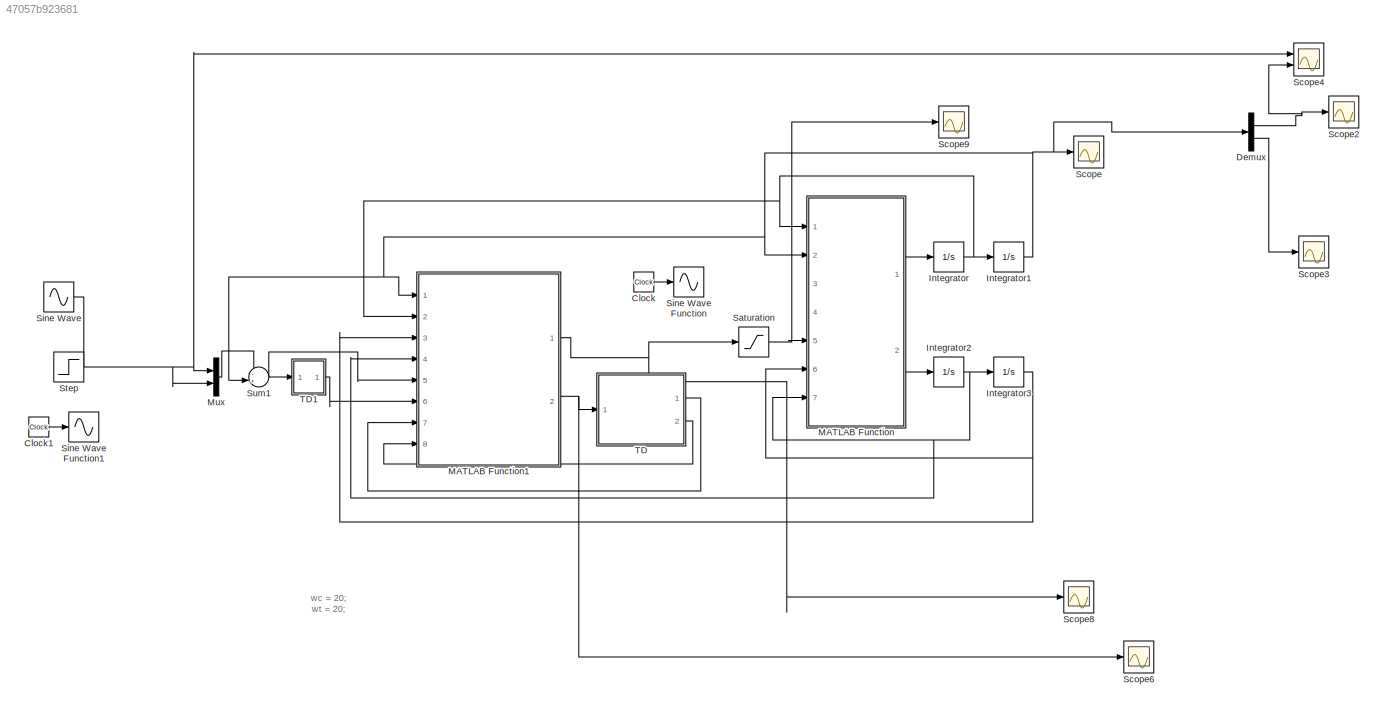
MODEL slx_47057b923681
KIND model
CONFIG AbsTol = auto
CONFIG EnableMultiTasking = off
CONFIG FixedStep = 0.001
CONFIG MaxStep = auto
CONFIG MinStep = auto
CONFIG RelTol = 1e-3
CONFIG SampleTimeConstraint = Unconstrained
CONFIG Solver = FixedStepAuto
CONFIG SolverName = FixedStepAuto
CONFIG StartTime = 0.0
CONFIG StopTime = 100
BLOCK [Clock] Clock
BLOCK [Clock] Clock1
BLOCK [Demux] Demux
  DisplayOption = bar
  Outputs = 2
  Ports = [1, 2]
BLOCK [Integrator] Integrator
  Ports = [1, 1]
BLOCK [Integrator] Integrator1
  Ports = [1, 1]
BLOCK [Integrator] Integrator2
  Ports = [1, 1]
BLOCK [Integrator] Integrator3
  Ports = [1, 1]
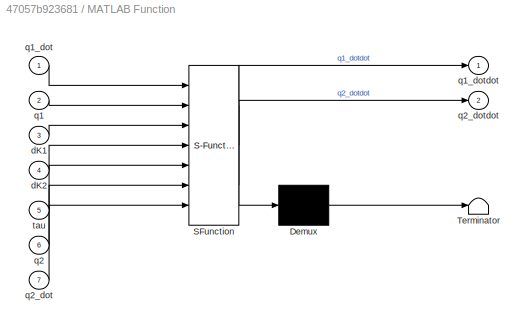
BLOCK [SubSystem] MATLAB Function
  ErrorFcn = Stateflow.Translate.translate
  PermitHierarchicalResolution = ExplicitOnly
  Ports = [7, 2]
  RequestExecContextInheritance = off
  SFBlockType = MATLAB Function
  TreatAsAtomicUnit = on
BLOCK [Demux] MATLAB Function/ Demux 
  Outputs = 1
  Ports = [1, 1]
BLOCK [S-Function] MATLAB Function/ SFunction 
  EnableBusSupport = on
  FunctionName = sf_sfun
  PortCounts = [7 3]
  Ports = [7, 3]
  SFcnIsStateOwnerBlock = off
  SFunctionDeploymentMode = off
  Tag = Stateflow S-Function FMC_robustControl_2017a 2
BLOCK [Terminator] MATLAB Function/ Terminator 
BLOCK [Inport] MATLAB Function/dK1
  IconDisplay = Port number
  Port = 3
BLOCK [Inport] MATLAB Function/dK2
  IconDisplay = Port number
  Port = 4
BLOCK [Inport] MATLAB Function/q1
  IconDisplay = Port number
  Port = 2
BLOCK [Inport] MATLAB Function/q1_dot
  IconDisplay = Port number
BLOCK [Outport] MATLAB Function/q1_dotdot
  IconDisplay = Port number
BLOCK [Inport] MATLAB Function/q2
  IconDisplay = Port number
  Port = 6
BLOCK [Inport] MATLAB Function/q2_dot
  IconDisplay = Port number
  Port = 7
BLOCK [Outport] MATLAB Function/q2_dotdot
  IconDisplay = Port number
  Port = 2
BLOCK [Inport] MATLAB Function/tau
  IconDisplay = Port number
  Port = 5
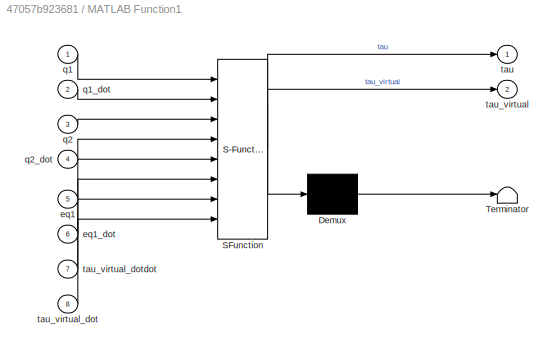
BLOCK [SubSystem] MATLAB Function1
  ErrorFcn = Stateflow.Translate.translate
  PermitHierarchicalResolution = ExplicitOnly
  Ports = [8, 2]
  RequestExecContextInheritance = off
  SFBlockType = MATLAB Function
  TreatAsAtomicUnit = on
BLOCK [Demux] MATLAB Function1/ Demux 
  Outputs = 1
  Ports = [1, 1]
BLOCK [S-Function] MATLAB Function1/ SFunction 
  EnableBusSupport = on
  FunctionName = sf_sfun
  PortCounts = [8 3]
  Ports = [8, 3]
  SFcnIsStateOwnerBlock = off
  SFunctionDeploymentMode = off
  Tag = Stateflow S-Function FMC_robustControl_2017a 1
BLOCK [Terminator] MATLAB Function1/ Terminator 
BLOCK [Inport] MATLAB Function1/eq1
  IconDisplay = Port number
  Port = 5
BLOCK [Inport] MATLAB Function1/eq1_dot
  IconDisplay = Port number
  Port = 6
BLOCK [Inport] MATLAB Function1/q1
  IconDisplay = Port number
BLOCK [Inport] MATLAB Function1/q1_dot
  IconDisplay = Port number
  Port = 2
BLOCK [Inport] MATLAB Function1/q2
  IconDisplay = Port number
  Port = 3
BLOCK [Inport] MATLAB Function1/q2_dot
  IconDisplay = Port number
  Port = 4
BLOCK [Outport] MATLAB Function1/tau
  IconDisplay = Port number
BLOCK [Outport] MATLAB Function1/tau_virtual
  IconDisplay = Port number
  Port = 2
BLOCK [Inport] MATLAB Function1/tau_virtual_dot
  IconDisplay = Port number
  Port = 8
BLOCK [Inport] MATLAB Function1/tau_virtual_dotdot
  IconDisplay = Port number
  Port = 7
BLOCK [Mux] Mux
  DisplayOption = bar
  Inputs = 2
  Ports = [2, 1]
BLOCK [Saturate] Saturation
  InputPortMap = u0
  LowerLimit = -[1000;1000]
  Ports = [1, 1]
  UpperLimit = [1000;1000]
BLOCK [Scope] Scope
  Floating = off
  NumInputPorts = 1
  Ports = [1]
  ScopeSpecificationString = Simulink.scopes.TimeScopeBlockCfg('CurrentConfiguration', extmgr.ConfigurationSet(extmgr.Configuration('Core','General UI',true),extmgr.Configuration('Core','Source UI',true),extmgr.Configuration('Sources','WiredSimulink',true),extmgr.Configuration('Visuals','Time Domain',true,'SerializedDisplays',{struct('MinYLimReal','-0.12831','MaxYLimReal','0.1286','YLabelReal','','MinYLimMag','0.00000','MaxYL...<+1397ch>
BLOCK [Scope] Scope2
  Floating = off
  NumInputPorts = 1
  Ports = [1]
  ScopeSpecificationString = Simulink.scopes.TimeScopeBlockCfg('CurrentConfiguration', extmgr.ConfigurationSet(extmgr.Configuration('Core','General UI',true),extmgr.Configuration('Core','Source UI',true),extmgr.Configuration('Sources','WiredSimulink',true,'DataLoggingVariableName','ScopeData1'),extmgr.Configuration('Visuals','Time Domain',true,'SerializedDisplays',{struct('MinYLimReal','-0.12746','MaxYLimReal','0.12801','YLab...<+1418ch>
BLOCK [Scope] Scope3
  Floating = off
  NumInputPorts = 1
  Ports = [1]
  ScopeSpecificationString = Simulink.scopes.TimeScopeBlockCfg('CurrentConfiguration', extmgr.ConfigurationSet(extmgr.Configuration('Core','General UI',true),extmgr.Configuration('Core','Source UI',true),extmgr.Configuration('Sources','WiredSimulink',true,'DataLoggingVariableName','ScopeData2'),extmgr.Configuration('Visuals','Time Domain',true,'SerializedDisplays',{struct('MinYLimReal','-0.12831','MaxYLimReal','0.1286','YLabe...<+1440ch>
BLOCK [Scope] Scope4
  Floating = off
  NumInputPorts = 2
  Ports = [2]
  ScopeSpecificationString = Simulink.scopes.TimeScopeBlockCfg('CurrentConfiguration', extmgr.ConfigurationSet(extmgr.Configuration('Core','General UI',true),extmgr.Configuration('Core','Source UI',true),extmgr.Configuration('Sources','WiredSimulink',true,'DataLoggingVariableName','ScopeData1'),extmgr.Configuration('Visuals','Time Domain',true,'SerializedDisplays',{struct('MinYLimReal','-0.12746','MaxYLimReal','0.12801','YLab...<+1430ch>
BLOCK [Scope] Scope6
  Floating = off
  NumInputPorts = 1
  Ports = [1]
  ScopeSpecificationString = Simulink.scopes.TimeScopeBlockCfg('CurrentConfiguration', extmgr.ConfigurationSet(extmgr.Configuration('Core','General UI',true),extmgr.Configuration('Core','Source UI',true),extmgr.Configuration('Sources','WiredSimulink',true,'DataLoggingVariableName','ScopeData2'),extmgr.Configuration('Visuals','Time Domain',true,'SerializedDisplays',{struct('MinYLimReal','-9245081.45842','MaxYLimReal','9257044....<+1520ch>
BLOCK [Scope] Scope8
  Floating = off
  NumInputPorts = 1
  Ports = [1]
  ScopeSpecificationString = Simulink.scopes.TimeScopeBlockCfg('CurrentConfiguration', extmgr.ConfigurationSet(extmgr.Configuration('Core','General UI',true),extmgr.Configuration('Core','Source UI',true),extmgr.Configuration('Sources','WiredSimulink',true,'DataLoggingVariableName','ScopeData4'),extmgr.Configuration('Visuals','Time Domain',true,'SerializedDisplays',{struct('MinYLimReal','-47355909708777248.00000','MaxYLimReal'...<+1584ch>
BLOCK [Scope] Scope9
  Floating = off
  NumInputPorts = 1
  Ports = [1]
  ScopeSpecificationString = Simulink.scopes.TimeScopeBlockCfg('CurrentConfiguration', extmgr.ConfigurationSet(extmgr.Configuration('Core','General UI',true),extmgr.Configuration('Core','Source UI',true),extmgr.Configuration('Sources','WiredSimulink',true,'DataLoggingVariableName','ScopeData5'),extmgr.Configuration('Visuals','Time Domain',true,'SerializedDisplays',{struct('MinYLimReal','-1250.00000','MaxYLimReal','1250.00000'...<+1460ch>
BLOCK [Sin] Sine Wave
  Amplitude = 0.1
  Frequency = 0.5
  Ports = [0, 1]
  SampleTime = 0
BLOCK [Sin] Sine Wave Function
  Amplitude = 0.4
  Frequency = 20
  Ports = [1, 1]
  SampleTime = 0
  TimeSource = Use external signal
BLOCK [Sin] Sine Wave Function1
  Amplitude = 0.4
  Frequency = 20
  Ports = [1, 1]
  SampleTime = 0
  TimeSource = Use external signal
BLOCK [Step] Step
  After = 0.1
  SampleTime = 0
  Time = 0
BLOCK [Sum] Sum1
  IconShape = round
  InputSameDT = off
  Inputs = -+|
  OutDataTypeStr = Inherit: Inherit via internal rule
  Ports = [2, 1]
  SaturateOnIntegerOverflow = off
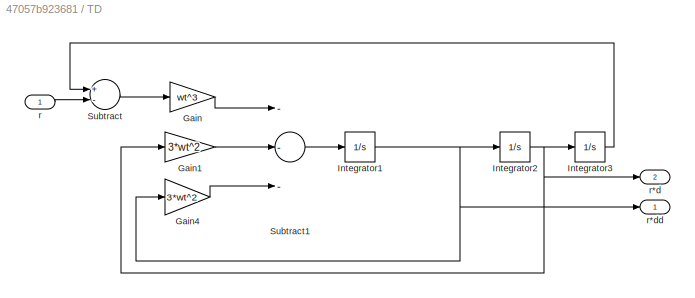
BLOCK [SubSystem] TD
  Ports = [1, 2]
  RequestExecContextInheritance = off
BLOCK [Gain] TD/Gain
  Gain = wt^3
  OutDataTypeStr = Inherit: Inherit via internal rule
  ParamDataTypeStr = Inherit: Inherit via internal rule
  SaturateOnIntegerOverflow = off
BLOCK [Gain] TD/Gain1
  Gain = 3*wt^2
  OutDataTypeStr = Inherit: Inherit via internal rule
  ParamDataTypeStr = Inherit: Inherit via internal rule
  SaturateOnIntegerOverflow = off
BLOCK [Gain] TD/Gain4
  Gain = 3*wt^2
  OutDataTypeStr = Inherit: Inherit via internal rule
  ParamDataTypeStr = Inherit: Inherit via internal rule
  SaturateOnIntegerOverflow = off
BLOCK [Integrator] TD/Integrator1
  Ports = [1, 1]
BLOCK [Integrator] TD/Integrator2
  Ports = [1, 1]
BLOCK [Integrator] TD/Integrator3
  Ports = [1, 1]
BLOCK [Sum] TD/Subtract
  InputSameDT = off
  Inputs = +-
  OutDataTypeStr = Inherit: Inherit via internal rule
  Ports = [2, 1]
  SaturateOnIntegerOverflow = off
BLOCK [Sum] TD/Subtract1
  InputSameDT = off
  Inputs = ---
  OutDataTypeStr = Inherit: Inherit via internal rule
  Ports = [3, 1]
  SaturateOnIntegerOverflow = off
BLOCK [Inport] TD/r
  IconDisplay = Port number
BLOCK [Outport] TD/r*d
  IconDisplay = Port number
  Port = 2
BLOCK [Outport] TD/r*dd
  IconDisplay = Port number
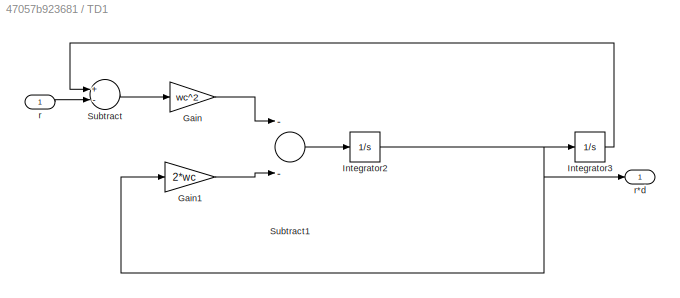
BLOCK [SubSystem] TD1
  Ports = [1, 1]
  RequestExecContextInheritance = off
BLOCK [Gain] TD1/Gain
  Gain = wc^2
  OutDataTypeStr = Inherit: Inherit via internal rule
  ParamDataTypeStr = Inherit: Inherit via internal rule
  SaturateOnIntegerOverflow = off
BLOCK [Gain] TD1/Gain1
  Gain = 2*wc
  OutDataTypeStr = Inherit: Inherit via internal rule
  ParamDataTypeStr = Inherit: Inherit via internal rule
  SaturateOnIntegerOverflow = off
BLOCK [Integrator] TD1/Integrator2
  Ports = [1, 1]
BLOCK [Integrator] TD1/Integrator3
  Ports = [1, 1]
BLOCK [Sum] TD1/Subtract
  InputSameDT = off
  Inputs = +-
  OutDataTypeStr = Inherit: Inherit via internal rule
  Ports = [2, 1]
  SaturateOnIntegerOverflow = off
BLOCK [Sum] TD1/Subtract1
  InputSameDT = off
  Inputs = --
  OutDataTypeStr = Inherit: Inherit via internal rule
  Ports = [2, 1]
  SaturateOnIntegerOverflow = off
BLOCK [Inport] TD1/r
  IconDisplay = Port number
BLOCK [Outport] TD1/r*d
  IconDisplay = Port number
ANNOTATION (root): wc = 20; wt = 20;
LINE Clock1:1 -> Sine Wave Function1:1
LINE Clock:1 -> Sine Wave Function:1
NET Demux:1 -> Scope2:1, Scope4:2
LINE Demux:2 -> Scope3:1
NET Integrator1:1 -> Demux:1, MATLAB Function1:1, MATLAB Function:2, Scope:1, Sum1:2
NET Integrator2:1 -> Integrator3:1, MATLAB Function1:4, MATLAB Function:7
NET Integrator3:1 -> MATLAB Function1:3, MATLAB Function:6
NET Integrator:1 -> Integrator1:1, MATLAB Function1:2, MATLAB Function:1
NET MATLAB Function1:1 -> Saturation:1, Scope8:1
NET MATLAB Function1:2 -> Scope6:1, TD:1
LINE MATLAB Function:1 -> Integrator:1
LINE MATLAB Function:2 -> Integrator2:1
LINE Mux:1 -> Sum1:1
NET Saturation:1 -> MATLAB Function:5, Scope9:1
NET Sine Wave:1 -> Mux:1, Mux:2, Scope4:1
NET Sum1:1 -> MATLAB Function1:5, TD1:1
LINE TD/Gain1:1 -> TD/Subtract1:2
LINE TD/Gain4:1 -> TD/Subtract1:3
LINE TD/Gain:1 -> TD/Subtract1:1
NET TD/Integrator1:1 -> TD/Gain4:1, TD/Integrator2:1, TD/r*dd:1
NET TD/Integrator2:1 -> TD/Gain1:1, TD/Integrator3:1, TD/r*d:1
LINE TD/Integrator3:1 -> TD/Subtract:1
LINE TD/Subtract1:1 -> TD/Integrator1:1
LINE TD/Subtract:1 -> TD/Gain:1
LINE TD/r:1 -> TD/Subtract:2
LINE TD1/Gain1:1 -> TD1/Subtract1:2
LINE TD1/Gain:1 -> TD1/Subtract1:1
NET TD1/Integrator2:1 -> TD1/Gain1:1, TD1/Integrator3:1, TD1/r*d:1
LINE TD1/Integrator3:1 -> TD1/Subtract:1
LINE TD1/Subtract1:1 -> TD1/Integrator2:1
LINE TD1/Subtract:1 -> TD1/Gain:1
LINE TD1/r:1 -> TD1/Subtract:2
LINE TD1:1 -> MATLAB Function1:6
LINE TD:1 -> MATLAB Function1:7
LINE TD:2 -> MATLAB Function1:8
note: NET lines group one-source signal fan-out (src -> all destinations, sorted); 1:1 wires keep LINE
CHART MATLAB Function1 states=1 transitions=1
  STATE_LABEL 'eML_blk_kernel()'
  STATE_LABEL 'SCRIPT:\nfunction [tau,tau_virtual] = fcn(q1,q1_dot,q2,q2_dot,eq1,eq1_dot,tau_virtual_dotdot,tau_virtual_dot)\n\nJ11 = 3.17*10^(-4);\nJ22 = 0.97*10^(-4);\nI1 = 0.96;\nI2 = 0.71;\nl1 = 0.6;\nlc1 = 0.3;\nlc2 = 0.5;\nm1 = 19.31;\nm2 = 13.73;\nK1_ = 1.06*10^3;\nK2_ = 0.75*10^3;\ng = 9.8;\n\nS11 = 1;\nS12 = 1;\nS21 = 2;\nS22 = 2;\nw1 =1;\nbeta1 = 2; beta2 = 2;\nalpha1 = 10; alpha2 = 10;\nKp1 = 100; Kd1 =20;\n\ndK1=0;dK2=0;\n\nq1...<+1522ch>'
CHART MATLAB Function states=1 transitions=1
  STATE_LABEL 'eML_blk_kernel()'
  STATE_LABEL 'SCRIPT:\nfunction [q1_dotdot,q2_dotdot] = fcn(q1_dot,q1,dK1,dK2,tau,q2,q2_dot)\nJ11 = 3.17*10^(-4);\nJ22 = 0.97*10^(-4);\nI1 = 0.96;\nI2 = 0.71;\nl1 = 0.6;\nlc1 = 0.3;\nlc2 = 0.5;\nm1 = 19.31;\nm2 = 13.73;\nK1_ = 1.06*10^3;\nK2_ = 0.75*10^3;\ng = 9.8;\n\nS11 = 1;\nS12 = 1;\nS21 = 2;\nS22 = 2;\nw1 =1;\nbeta1 = 2; beta2 = 2;\nalpha1 = 10; alpha2 = 10;\nKp1 = 100; Kd1 =20;\n\n\nq11 = q1(1);\nq12 = q1(2);\nq11_dot = q1_dot(1);\n...<+699ch>'
